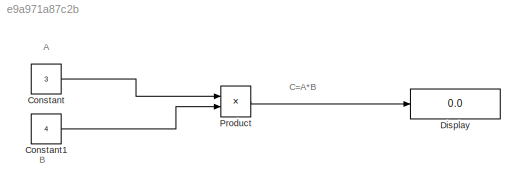
MODEL slx_e9a971a87c2b
KIND model
CONFIG AbsTol = auto
CONFIG EnableMultiTasking = off
CONFIG FixedStep = auto
CONFIG MaxStep = auto
CONFIG MinStep = auto
CONFIG RelTol = 1e-3
CONFIG SampleTimeConstraint = Unconstrained
CONFIG SolverName = VariableStepAuto
CONFIG StartTime = 0.0
CONFIG StopTime = 10.0
BLOCK [Constant] Constant
  Value = 3
BLOCK [Constant] Constant1
  Value = 4
BLOCK [Display] Display
  Decimation = 1
BLOCK [Product] Product
ANNOTATION (root): A
ANNOTATION (root): B
ANNOTATION (root): C=A*B
LINE Constant1:1 -> Product:2
LINE Constant:1 -> Product:1
LINE Product:1 -> Display:1
